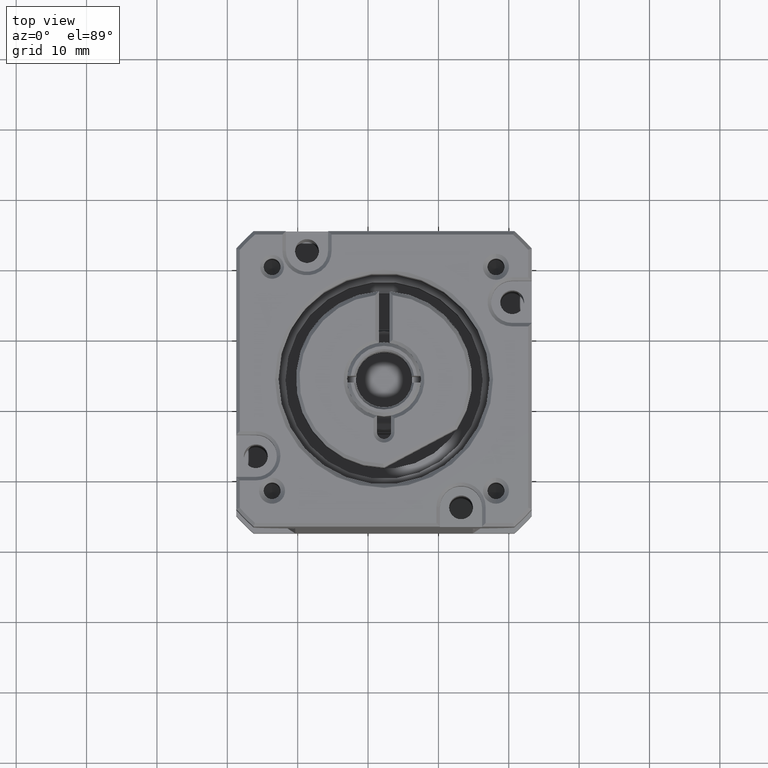
[diagram: clean part render]
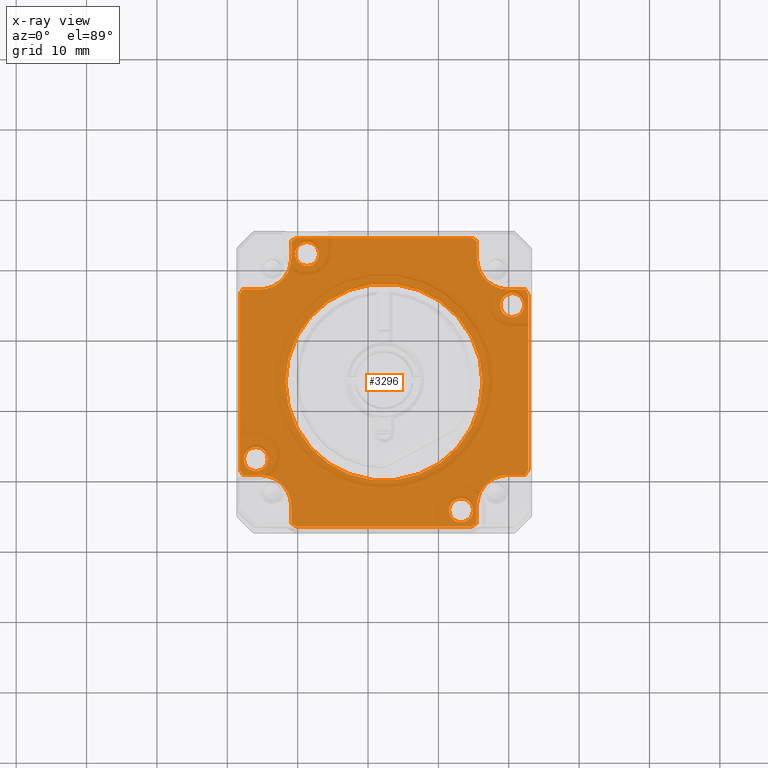
[diagram: x-ray — body ghosted, one internal face saturated and labeled with its STEP entity id]
A machine part, top view, then the same camera in x-ray: the body is ghosted and one INTERNAL B-rep face — a face not visible from any outside direction — is saturated and labeled: STEP entity #3296.
In plain terms, the highlighted planar face has unit normal (0, 0, -1).
Its self-contained STEP definition (entity closure, byte-faithful):
#12 = CARTESIAN_POINT ( 'NONE',  ( 20.50000000000000400, 0.0000000000000000000, 28.50000000000000000 ) ) ;
#102 = AXIS2_PLACEMENT_3D ( 'NONE', #9517, #10372, #3478 ) ;
#120 = VERTEX_POINT ( 'NONE', #9857 ) ;
#129 = EDGE_CURVE ( 'NONE', #869, #4469, #1448, .T. ) ;
#149 = DIRECTION ( 'NONE',  ( 1.000000000000000000, 0.0000000000000000000, -0.0000000000000000000 ) ) ;
#172 = ORIENTED_EDGE ( 'NONE', *, *, #6101, .T. ) ;
#185 = AXIS2_PLACEMENT_3D ( 'NONE', #9098, #2244, #4749 ) ;
#191 = CARTESIAN_POINT ( 'NONE',  ( 0.0000000000000000000, -13.18000000002450800, 28.50000000000000000 ) ) ;
#203 = CARTESIAN_POINT ( 'NONE',  ( -13.18000000002450800, 0.0000000000000000000, 28.50000000000000000 ) ) ;
#232 = VERTEX_POINT ( 'NONE', #361 ) ;
#262 = LINE ( 'NONE', #8527, #2153 ) ;
#285 = ORIENTED_EDGE ( 'NONE', *, *, #3294, .T. ) ;
#316 = CARTESIAN_POINT ( 'NONE',  ( 10.94455909183860100, 18.21480513991990000, 28.50000000000000000 ) ) ;
#322 = EDGE_CURVE ( 'NONE', #7762, #1803, #1992, .T. ) ;
#361 = CARTESIAN_POINT ( 'NONE',  ( -12.47998397434870900, 20.50000000000000400, 28.49999999999999600 ) ) ;
#390 = VERTEX_POINT ( 'NONE', #2612 ) ;
#408 = DIRECTION ( 'NONE',  ( 0.0000000000000000000, 0.0000000000000000000, 1.000000000000000000 ) ) ;
#461 = DIRECTION ( 'NONE',  ( -0.0000000000000000000, 0.0000000000000000000, -1.000000000000000000 ) ) ;
#493 = ORIENTED_EDGE ( 'NONE', *, *, #1289, .T. ) ;
#543 = CARTESIAN_POINT ( 'NONE',  ( 0.0000000000000000000, 0.0000000000000000000, 28.49999999999999600 ) ) ;
#550 = VERTEX_POINT ( 'NONE', #4516 ) ;
#568 = CIRCLE ( 'NONE', #8600, 1.700000000000000200 ) ;
#581 = VERTEX_POINT ( 'NONE', #7050 ) ;
#599 = VERTEX_POINT ( 'NONE', #9221 ) ;
#659 = CARTESIAN_POINT ( 'NONE',  ( -20.50000000000000400, 12.47998397434868800, 28.49999999999999600 ) ) ;
#693 = AXIS2_PLACEMENT_3D ( 'NONE', #316, #7250, #9919 ) ;
#748 = ORIENTED_EDGE ( 'NONE', *, *, #8700, .T. ) ;
#788 = VECTOR ( 'NONE', #9784, 1000.000000000000000 ) ;
#869 = VERTEX_POINT ( 'NONE', #7886 ) ;
#897 = FACE_BOUND ( 'NONE', #9032, .T. ) ;
#900 = CARTESIAN_POINT ( 'NONE',  ( -14.00000000000000000, 0.0000000000000000000, 28.50000000000000000 ) ) ;
#913 = DIRECTION ( 'NONE',  ( -1.000000000000000000, 0.0000000000000000000, 0.0000000000000000000 ) ) ;
#929 = DIRECTION ( 'NONE',  ( 7.080503983739728200E-017, 7.080503983739728200E-017, 1.000000000000000000 ) ) ;
#942 = VERTEX_POINT ( 'NONE', #6984 ) ;
#968 = CARTESIAN_POINT ( 'NONE',  ( 0.0000000000000000000, -13.18000000000000700, 28.50000000000000000 ) ) ;
#1036 = DIRECTION ( 'NONE',  ( 0.0000000000000000000, 1.000000000000000000, 0.0000000000000000000 ) ) ;
#1133 = CARTESIAN_POINT ( 'NONE',  ( 0.0000000000000000000, 13.18000000002450800, 28.50000000000000000 ) ) ;
#1199 = AXIS2_PLACEMENT_3D ( 'NONE', #6459, #408, #9086 ) ;
#1206 = PLANE ( 'NONE',  #1199 ) ;
#1245 = ORIENTED_EDGE ( 'NONE', *, *, #2486, .T. ) ;
#1283 = LINE ( 'NONE', #6067, #10257 ) ;
#1289 = EDGE_CURVE ( 'NONE', #599, #3255, #2241, .T. ) ;
#1316 = EDGE_CURVE ( 'NONE', #8825, #869, #1704, .T. ) ;
#1321 = AXIS2_PLACEMENT_3D ( 'NONE', #9305, #10178, #6616 ) ;
#1448 = LINE ( 'NONE', #2008, #8936 ) ;
#1480 = CIRCLE ( 'NONE', #9796, 4.499999999991647600 ) ;
#1492 = LINE ( 'NONE', #968, #2027 ) ;
#1509 = VERTEX_POINT ( 'NONE', #6431 ) ;
#1523 = CARTESIAN_POINT ( 'NONE',  ( 17.68000000000000000, -17.68000000000000000, 28.49999999989449900 ) ) ;
#1525 = ORIENTED_EDGE ( 'NONE', *, *, #129, .T. ) ;
#1534 = CARTESIAN_POINT ( 'NONE',  ( -12.64455909183860000, -18.21480513991990000, 28.50000000000000000 ) ) ;
#1541 = EDGE_CURVE ( 'NONE', #3255, #599, #4392, .T. ) ;
#1544 = ORIENTED_EDGE ( 'NONE', *, *, #3885, .T. ) ;
#1555 = CIRCLE ( 'NONE', #4358, 24.00000000000000400 ) ;
#1595 = EDGE_CURVE ( 'NONE', #1781, #2874, #1555, .T. ) ;
#1699 = CARTESIAN_POINT ( 'NONE',  ( 0.0000000000000000000, 20.50000000000000400, 28.50000000000000000 ) ) ;
#1704 = CIRCLE ( 'NONE', #10470, 24.00000000000001400 ) ;
#1731 = VERTEX_POINT ( 'NONE', #10205 ) ;
#1752 = CARTESIAN_POINT ( 'NONE',  ( 17.68000000000000000, 17.68000000000000000, 28.49999999989449900 ) ) ;
#1758 = VECTOR ( 'NONE', #2578, 1000.000000000000000 ) ;
#1781 = VERTEX_POINT ( 'NONE', #4495 ) ;
#1803 = VERTEX_POINT ( 'NONE', #8757 ) ;
#1882 = DIRECTION ( 'NONE',  ( 1.000000000000000000, 0.0000000000000000000, 0.0000000000000000000 ) ) ;
#1890 = DIRECTION ( 'NONE',  ( -0.0000000000000000000, 1.000000000000000000, 0.0000000000000000000 ) ) ;
#1898 = VERTEX_POINT ( 'NONE', #3599 ) ;
#1941 = CIRCLE ( 'NONE', #10836, 4.500000000022902600 ) ;
#1959 = DIRECTION ( 'NONE',  ( 7.080503983736879700E-017, 1.416100796747375900E-016, 1.000000000000000000 ) ) ;
#1992 = CIRCLE ( 'NONE', #4129, 1.700000000000000200 ) ;
#2002 = CARTESIAN_POINT ( 'NONE',  ( -13.18000000006204800, -17.68000000000000000, 28.49999999994420800 ) ) ;
#2008 = CARTESIAN_POINT ( 'NONE',  ( 13.18000000000000700, 0.0000000000000000000, 28.50000000000000000 ) ) ;
#2027 = VECTOR ( 'NONE', #6560, 1000.000000000000000 ) ;
#2133 = DIRECTION ( 'NONE',  ( -0.0000000000000000000, -0.0000000000000000000, 1.000000000000000000 ) ) ;
#2139 = CIRCLE ( 'NONE', #693, 1.700000000000000200 ) ;
#2153 = VECTOR ( 'NONE', #10197, 1000.000000000000000 ) ;
#2241 = CIRCLE ( 'NONE', #2493, 1.700000000000000200 ) ;
#2244 = DIRECTION ( 'NONE',  ( 7.080503983736882200E-017, 1.416100796747376200E-016, 1.000000000000000000 ) ) ;
#2277 = VERTEX_POINT ( 'NONE', #10312 ) ;
#2302 = LINE ( 'NONE', #12, #1758 ) ;
#2396 = EDGE_CURVE ( 'NONE', #3972, #6877, #3114, .T. ) ;
#2411 = CARTESIAN_POINT ( 'NONE',  ( -18.21480513991990000, 10.94455909183860100, 28.50000000000000000 ) ) ;
#2421 = VERTEX_POINT ( 'NONE', #7844 ) ;
#2454 = ORIENTED_EDGE ( 'NONE', *, *, #2887, .T. ) ;
#2486 = EDGE_CURVE ( 'NONE', #1898, #390, #5133, .T. ) ;
#2489 = EDGE_CURVE ( 'NONE', #5694, #1898, #6320, .T. ) ;
#2493 = AXIS2_PLACEMENT_3D ( 'NONE', #2411, #9280, #4065 ) ;
#2514 = CIRCLE ( 'NONE', #9174, 24.00000000000001400 ) ;
#2578 = DIRECTION ( 'NONE',  ( -0.0000000000000000000, 1.000000000000000000, 0.0000000000000000000 ) ) ;
#2583 = VECTOR ( 'NONE', #5490, 1000.000000000000000 ) ;
#2612 = CARTESIAN_POINT ( 'NONE',  ( -12.47998397434869000, -20.50000000000000400, 28.49999999999999300 ) ) ;
#2618 = EDGE_LOOP ( 'NONE', ( #8053, #8843 ) ) ;
#2658 = ORIENTED_EDGE ( 'NONE', *, *, #4335, .T. ) ;
#2662 = EDGE_CURVE ( 'NONE', #942, #9889, #2139, .T. ) ;
#2700 = VERTEX_POINT ( 'NONE', #6617 ) ;
#2719 = DIRECTION ( 'NONE',  ( 0.0000000000000000000, 0.0000000000000000000, -1.000000000000000000 ) ) ;
#2848 = DIRECTION ( 'NONE',  ( -0.0000000000000000000, 0.0000000000000000000, -1.000000000000000000 ) ) ;
#2874 = VERTEX_POINT ( 'NONE', #659 ) ;
#2887 = EDGE_CURVE ( 'NONE', #4469, #8872, #4836, .T. ) ;
#2952 = DIRECTION ( 'NONE',  ( 0.0000000000000000000, 0.0000000000000000000, -1.000000000000000000 ) ) ;
#2990 = DIRECTION ( 'NONE',  ( 1.000000000000000000, 0.0000000000000000000, 0.0000000000000000000 ) ) ;
#3114 = CIRCLE ( 'NONE', #102, 24.00000000000001100 ) ;
#3160 = CARTESIAN_POINT ( 'NONE',  ( 0.0000000000000000000, -20.50000000000000400, 28.50000000000000000 ) ) ;
#3207 = VECTOR ( 'NONE', #149, 1000.000000000000000 ) ;
#3236 = FACE_BOUND ( 'NONE', #7709, .T. ) ;
#3255 = VERTEX_POINT ( 'NONE', #3798 ) ;
#3294 = EDGE_CURVE ( 'NONE', #550, #5553, #6985, .T. ) ;
#3296 = ADVANCED_FACE ( 'NONE', ( #8232, #9997, #3236, #897, #9864, #7961 ), #1206, .T. ) ;
#3397 = DIRECTION ( 'NONE',  ( -1.000000000000000000, 0.0000000000000000000, 0.0000000000000000000 ) ) ;
#3409 = VERTEX_POINT ( 'NONE', #6682 ) ;
#3412 = CARTESIAN_POINT ( 'NONE',  ( 12.47998397434870600, -20.50000000000000400, 28.49999999999999600 ) ) ;
#3478 = DIRECTION ( 'NONE',  ( 0.0000000000000000000, 1.000000000000000000, 0.0000000000000000000 ) ) ;
#3516 = CIRCLE ( 'NONE', #9367, 1.700000000000000200 ) ;
#3552 = CARTESIAN_POINT ( 'NONE',  ( 3.540251994349909700E-017, 7.080503988699819400E-017, 28.50000000000000000 ) ) ;
#3571 = DIRECTION ( 'NONE',  ( -0.0000000000000000000, -3.854941057733391600E-016, -1.000000000000000000 ) ) ;
#3599 = CARTESIAN_POINT ( 'NONE',  ( -13.18000000001234700, -20.05710846557087700, 28.49999999999999300 ) ) ;
#3625 = CARTESIAN_POINT ( 'NONE',  ( 3.540251994281549300E-017, 3.540251994281549300E-017, 28.49999999999999300 ) ) ;
#3684 = AXIS2_PLACEMENT_3D ( 'NONE', #543, #2133, #3874 ) ;
#3798 = CARTESIAN_POINT ( 'NONE',  ( -19.91480513991989900, 10.94455909183860100, 28.50000000000000000 ) ) ;
#3822 = DIRECTION ( 'NONE',  ( 0.0000000000000000000, 0.0000000000000000000, -1.000000000000000000 ) ) ;
#3874 = DIRECTION ( 'NONE',  ( -1.000000000000000000, -5.329070518200751400E-014, 0.0000000000000000000 ) ) ;
#3885 = EDGE_CURVE ( 'NONE', #4983, #10688, #9718, .T. ) ;
#3897 = VERTEX_POINT ( 'NONE', #1534 ) ;
#3928 = CARTESIAN_POINT ( 'NONE',  ( 0.0000000000000000000, 0.0000000000000000000, 28.50000000000000000 ) ) ;
#3972 = VERTEX_POINT ( 'NONE', #8476 ) ;
#4039 = ORIENTED_EDGE ( 'NONE', *, *, #6440, .T. ) ;
#4065 = DIRECTION ( 'NONE',  ( -1.000000000000000000, 0.0000000000000000000, 0.0000000000000000000 ) ) ;
#4088 = EDGE_LOOP ( 'NONE', ( #4459, #493 ) ) ;
#4093 = ORIENTED_EDGE ( 'NONE', *, *, #4568, .T. ) ;
#4129 = AXIS2_PLACEMENT_3D ( 'NONE', #10113, #8474, #10153 ) ;
#4207 = CARTESIAN_POINT ( 'NONE',  ( 2.506676834942689700E-033, 3.540251994349898000E-017, 28.49999999999999600 ) ) ;
#4223 = VERTEX_POINT ( 'NONE', #8543 ) ;
#4268 = CARTESIAN_POINT ( 'NONE',  ( 0.0000000000000000000, 0.0000000000000000000, 28.50000000000000000 ) ) ;
#4295 = ORIENTED_EDGE ( 'NONE', *, *, #2396, .T. ) ;
#4320 = AXIS2_PLACEMENT_3D ( 'NONE', #7385, #4846, #10838 ) ;
#4335 = EDGE_CURVE ( 'NONE', #2700, #1509, #4726, .T. ) ;
#4358 = AXIS2_PLACEMENT_3D ( 'NONE', #9782, #9847, #9239 ) ;
#4376 = AXIS2_PLACEMENT_3D ( 'NONE', #1523, #7596, #5019 ) ;
#4387 = CARTESIAN_POINT ( 'NONE',  ( 13.18000000001906000, -17.68000000000000000, 28.49999999993508500 ) ) ;
#4389 = EDGE_CURVE ( 'NONE', #1731, #550, #1480, .T. ) ;
#4392 = CIRCLE ( 'NONE', #5532, 1.700000000000000200 ) ;
#4445 = EDGE_CURVE ( 'NONE', #9889, #942, #3516, .T. ) ;
#4446 = LINE ( 'NONE', #3160, #7867 ) ;
#4459 = ORIENTED_EDGE ( 'NONE', *, *, #1541, .T. ) ;
#4469 = VERTEX_POINT ( 'NONE', #4387 ) ;
#4495 = CARTESIAN_POINT ( 'NONE',  ( -20.05710846557087400, 13.18000000001234900, 28.49999999999999600 ) ) ;
#4501 = CARTESIAN_POINT ( 'NONE',  ( 12.64455909183860000, 18.21480513991990000, 28.50000000000000000 ) ) ;
#4509 = CARTESIAN_POINT ( 'NONE',  ( 19.91480513991989900, -10.94455909183860100, 28.50000000000000000 ) ) ;
#4516 = CARTESIAN_POINT ( 'NONE',  ( 13.18000000003939600, 17.68000000000000000, 28.49999999992087400 ) ) ;
#4568 = EDGE_CURVE ( 'NONE', #581, #1781, #6340, .T. ) ;
#4624 = EDGE_CURVE ( 'NONE', #1803, #7762, #6736, .T. ) ;
#4726 = LINE ( 'NONE', #5776, #6603 ) ;
#4749 = DIRECTION ( 'NONE',  ( 0.0000000000000000000, 1.000000000000000000, -1.445602896647338900E-016 ) ) ;
#4799 = ORIENTED_EDGE ( 'NONE', *, *, #5105, .T. ) ;
#4817 = CIRCLE ( 'NONE', #185, 24.00000000000000700 ) ;
#4836 = CIRCLE ( 'NONE', #4376, 4.499999999991649300 ) ;
#4846 = DIRECTION ( 'NONE',  ( 0.0000000000000000000, 0.0000000000000000000, -1.000000000000000000 ) ) ;
#4852 = CARTESIAN_POINT ( 'NONE',  ( 14.00000000000000000, 1.714505518806294600E-015, 28.50000000000000000 ) ) ;
#4880 = ORIENTED_EDGE ( 'NONE', *, *, #4445, .T. ) ;
#4973 = EDGE_CURVE ( 'NONE', #6604, #232, #7178, .T. ) ;
#4983 = VERTEX_POINT ( 'NONE', #900 ) ;
#5019 = DIRECTION ( 'NONE',  ( 0.0000000000000000000, -1.000000000000000000, 0.0000000000000000000 ) ) ;
#5105 = EDGE_CURVE ( 'NONE', #6877, #2277, #1492, .T. ) ;
#5133 = CIRCLE ( 'NONE', #6119, 24.00000000000000700 ) ;
#5188 = ORIENTED_EDGE ( 'NONE', *, *, #6115, .T. ) ;
#5230 = DIRECTION ( 'NONE',  ( -1.000000000000000000, 0.0000000000000000000, 0.0000000000000000000 ) ) ;
#5238 = EDGE_CURVE ( 'NONE', #390, #8825, #4446, .T. ) ;
#5284 = VECTOR ( 'NONE', #9520, 1000.000000000000000 ) ;
#5288 = ORIENTED_EDGE ( 'NONE', *, *, #5238, .T. ) ;
#5293 = DIRECTION ( 'NONE',  ( 1.776356839400250500E-015, 1.000000000000000000, -1.445602896647338400E-016 ) ) ;
#5346 = EDGE_CURVE ( 'NONE', #2874, #3972, #262, .T. ) ;
#5359 = DIRECTION ( 'NONE',  ( 5.013353666371384700E-033, 7.080503983736880900E-017, 1.000000000000000000 ) ) ;
#5465 = CARTESIAN_POINT ( 'NONE',  ( 17.68000000000000000, -13.18000000006204800, 28.49999999994420800 ) ) ;
#5490 = DIRECTION ( 'NONE',  ( -1.000000000000000000, -0.0000000000000000000, 0.0000000000000000000 ) ) ;
#5532 = AXIS2_PLACEMENT_3D ( 'NONE', #10634, #2952, #6285 ) ;
#5553 = VERTEX_POINT ( 'NONE', #10454 ) ;
#5591 = EDGE_CURVE ( 'NONE', #232, #2700, #6837, .T. ) ;
#5645 = CARTESIAN_POINT ( 'NONE',  ( -17.68000000000000000, 17.68000000000000000, 28.49999999989449900 ) ) ;
#5694 = VERTEX_POINT ( 'NONE', #2002 ) ;
#5748 = LINE ( 'NONE', #191, #3207 ) ;
#5776 = CARTESIAN_POINT ( 'NONE',  ( -13.18000000000000700, 0.0000000000000000000, 28.50000000000000000 ) ) ;
#5902 = VECTOR ( 'NONE', #8272, 1000.000000000000000 ) ;
#5903 = ORIENTED_EDGE ( 'NONE', *, *, #11034, .T. ) ;
#5989 = DIRECTION ( 'NONE',  ( -1.000000000000000000, -0.0000000000000000000, 0.0000000000000000000 ) ) ;
#6065 = EDGE_LOOP ( 'NONE', ( #172, #8418, #285, #6922, #10971, #10328, #2658, #8833, #4093, #6761, #8303, #4295, #4799, #4039, #8116, #1245, #5288, #6996, #1525, #2454, #5188, #5903, #748, #10912 ) ) ;
#6067 = CARTESIAN_POINT ( 'NONE',  ( 0.0000000000000000000, 13.18000000000000700, 28.50000000000000000 ) ) ;
#6101 = EDGE_CURVE ( 'NONE', #120, #1731, #1283, .T. ) ;
#6115 = EDGE_CURVE ( 'NONE', #8872, #4223, #5748, .T. ) ;
#6119 = AXIS2_PLACEMENT_3D ( 'NONE', #3625, #929, #9630 ) ;
#6285 = DIRECTION ( 'NONE',  ( -1.000000000000000000, 0.0000000000000000000, 0.0000000000000000000 ) ) ;
#6320 = LINE ( 'NONE', #203, #788 ) ;
#6340 = LINE ( 'NONE', #1133, #2583 ) ;
#6384 = CARTESIAN_POINT ( 'NONE',  ( 13.18000000002450800, 0.0000000000000000000, 28.50000000000000000 ) ) ;
#6431 = CARTESIAN_POINT ( 'NONE',  ( -13.17999999998006900, 17.68000000000000000, 28.49999999994929600 ) ) ;
#6440 = EDGE_CURVE ( 'NONE', #2277, #5694, #7104, .T. ) ;
#6459 = CARTESIAN_POINT ( 'NONE',  ( 0.0000000000000000000, 0.0000000000000000000, 28.50000000000000000 ) ) ;
#6503 = EDGE_CURVE ( 'NONE', #3409, #120, #2514, .T. ) ;
#6560 = DIRECTION ( 'NONE',  ( 1.000000000000000000, 0.0000000000000000000, -0.0000000000000000000 ) ) ;
#6603 = VECTOR ( 'NONE', #6670, 1000.000000000000000 ) ;
#6604 = VERTEX_POINT ( 'NONE', #9996 ) ;
#6616 = DIRECTION ( 'NONE',  ( -1.000000000000000000, 0.0000000000000000000, 0.0000000000000000000 ) ) ;
#6617 = CARTESIAN_POINT ( 'NONE',  ( -13.18000000000308000, 20.05710846558065100, 28.49999999999692300 ) ) ;
#6670 = DIRECTION ( 'NONE',  ( 0.0000000000000000000, -1.000000000000000000, -0.0000000000000000000 ) ) ;
#6682 = CARTESIAN_POINT ( 'NONE',  ( 20.50000000000000400, 12.47998397434870600, 28.49999999999999600 ) ) ;
#6736 = CIRCLE ( 'NONE', #4320, 1.700000000000000200 ) ;
#6761 = ORIENTED_EDGE ( 'NONE', *, *, #1595, .T. ) ;
#6775 = AXIS2_PLACEMENT_3D ( 'NONE', #4268, #11103, #3397 ) ;
#6837 = CIRCLE ( 'NONE', #8186, 24.00000000000001400 ) ;
#6877 = VERTEX_POINT ( 'NONE', #10044 ) ;
#6922 = ORIENTED_EDGE ( 'NONE', *, *, #11051, .T. ) ;
#6984 = CARTESIAN_POINT ( 'NONE',  ( 9.244559091838599600, 18.21480513991990000, 28.50000000000000000 ) ) ;
#6985 = LINE ( 'NONE', #6384, #5902 ) ;
#6996 = ORIENTED_EDGE ( 'NONE', *, *, #1316, .T. ) ;
#7037 = VERTEX_POINT ( 'NONE', #8477 ) ;
#7040 = DIRECTION ( 'NONE',  ( 0.0000000000000000000, -1.000000000000000000, 0.0000000000000000000 ) ) ;
#7050 = CARTESIAN_POINT ( 'NONE',  ( -17.68000000000000000, 13.18000000006204800, 28.49999999994420800 ) ) ;
#7060 = CARTESIAN_POINT ( 'NONE',  ( 3.540251994349852400E-017, 3.540251994349852400E-017, 28.49999999999999600 ) ) ;
#7104 = CIRCLE ( 'NONE', #7414, 4.500000000022902600 ) ;
#7165 = ORIENTED_EDGE ( 'NONE', *, *, #10800, .T. ) ;
#7178 = LINE ( 'NONE', #1699, #5284 ) ;
#7250 = DIRECTION ( 'NONE',  ( 0.0000000000000000000, 0.0000000000000000000, -1.000000000000000000 ) ) ;
#7318 = ORIENTED_EDGE ( 'NONE', *, *, #7493, .T. ) ;
#7380 = DIRECTION ( 'NONE',  ( 1.000000000000000000, 0.0000000000000000000, -0.0000000000000000000 ) ) ;
#7385 = CARTESIAN_POINT ( 'NONE',  ( 18.21480513991990000, -10.94455909183860100, 28.50000000000000000 ) ) ;
#7414 = AXIS2_PLACEMENT_3D ( 'NONE', #8952, #2848, #1882 ) ;
#7468 = EDGE_CURVE ( 'NONE', #1509, #581, #1941, .T. ) ;
#7493 = EDGE_CURVE ( 'NONE', #2421, #3897, #9272, .T. ) ;
#7543 = CIRCLE ( 'NONE', #6775, 14.00000000000000000 ) ;
#7596 = DIRECTION ( 'NONE',  ( -0.0000000000000000000, -3.854941057733391600E-016, -1.000000000000000000 ) ) ;
#7709 = EDGE_LOOP ( 'NONE', ( #10611, #7318 ) ) ;
#7762 = VERTEX_POINT ( 'NONE', #4509 ) ;
#7844 = CARTESIAN_POINT ( 'NONE',  ( -9.244559091838599600, -18.21480513991990000, 28.50000000000000000 ) ) ;
#7867 = VECTOR ( 'NONE', #7380, 1000.000000000000000 ) ;
#7886 = CARTESIAN_POINT ( 'NONE',  ( 13.18000000000734100, -20.05710846558294900, 28.49999999999266000 ) ) ;
#7952 = DIRECTION ( 'NONE',  ( 7.080503983736882200E-017, 7.080503983736882200E-017, 1.000000000000000000 ) ) ;
#7961 = FACE_BOUND ( 'NONE', #9381, .T. ) ;
#8053 = ORIENTED_EDGE ( 'NONE', *, *, #4624, .T. ) ;
#8116 = ORIENTED_EDGE ( 'NONE', *, *, #2489, .T. ) ;
#8132 = ORIENTED_EDGE ( 'NONE', *, *, #2662, .T. ) ;
#8186 = AXIS2_PLACEMENT_3D ( 'NONE', #3552, #1959, #5293 ) ;
#8193 = EDGE_CURVE ( 'NONE', #3897, #2421, #568, .T. ) ;
#8232 = FACE_OUTER_BOUND ( 'NONE', #6065, .T. ) ;
#8272 = DIRECTION ( 'NONE',  ( -0.0000000000000000000, 1.000000000000000000, 0.0000000000000000000 ) ) ;
#8303 = ORIENTED_EDGE ( 'NONE', *, *, #5346, .T. ) ;
#8418 = ORIENTED_EDGE ( 'NONE', *, *, #4389, .T. ) ;
#8474 = DIRECTION ( 'NONE',  ( 0.0000000000000000000, 0.0000000000000000000, -1.000000000000000000 ) ) ;
#8476 = CARTESIAN_POINT ( 'NONE',  ( -20.50000000000000000, -12.47998397434870200, 28.50000000000000400 ) ) ;
#8477 = CARTESIAN_POINT ( 'NONE',  ( 20.50000000000000400, -12.47998397434868800, 28.49999999999999600 ) ) ;
#8527 = CARTESIAN_POINT ( 'NONE',  ( -20.50000000000000400, 0.0000000000000000000, 28.50000000000000000 ) ) ;
#8543 = CARTESIAN_POINT ( 'NONE',  ( 20.05710846557087700, -13.18000000001234400, 28.50000000000000000 ) ) ;
#8600 = AXIS2_PLACEMENT_3D ( 'NONE', #9494, #8722, #5230 ) ;
#8700 = EDGE_CURVE ( 'NONE', #7037, #3409, #2302, .T. ) ;
#8722 = DIRECTION ( 'NONE',  ( 0.0000000000000000000, 0.0000000000000000000, -1.000000000000000000 ) ) ;
#8757 = CARTESIAN_POINT ( 'NONE',  ( 16.51480513991990100, -10.94455909183860100, 28.50000000000000000 ) ) ;
#8825 = VERTEX_POINT ( 'NONE', #3412 ) ;
#8833 = ORIENTED_EDGE ( 'NONE', *, *, #7468, .T. ) ;
#8843 = ORIENTED_EDGE ( 'NONE', *, *, #322, .T. ) ;
#8872 = VERTEX_POINT ( 'NONE', #5465 ) ;
#8936 = VECTOR ( 'NONE', #1890, 1000.000000000000000 ) ;
#8952 = CARTESIAN_POINT ( 'NONE',  ( -17.68000000000000000, -17.68000000000000000, 28.49999999989449900 ) ) ;
#9032 = EDGE_LOOP ( 'NONE', ( #8132, #4880 ) ) ;
#9086 = DIRECTION ( 'NONE',  ( 1.000000000000000000, 0.0000000000000000000, -0.0000000000000000000 ) ) ;
#9098 = CARTESIAN_POINT ( 'NONE',  ( 3.540251994349894300E-017, 7.080503988699787300E-017, 28.49999999999999600 ) ) ;
#9174 = AXIS2_PLACEMENT_3D ( 'NONE', #7060, #7952, #10599 ) ;
#9221 = CARTESIAN_POINT ( 'NONE',  ( -16.51480513991990100, 10.94455909183860100, 28.50000000000000000 ) ) ;
#9239 = DIRECTION ( 'NONE',  ( -1.000000000000000000, 5.506706202140776400E-014, 0.0000000000000000000 ) ) ;
#9272 = CIRCLE ( 'NONE', #1321, 1.700000000000000200 ) ;
#9280 = DIRECTION ( 'NONE',  ( 0.0000000000000000000, 0.0000000000000000000, -1.000000000000000000 ) ) ;
#9305 = CARTESIAN_POINT ( 'NONE',  ( -10.94455909183860100, -18.21480513991990000, 28.50000000000000000 ) ) ;
#9367 = AXIS2_PLACEMENT_3D ( 'NONE', #10439, #2719, #913 ) ;
#9381 = EDGE_LOOP ( 'NONE', ( #1544, #7165 ) ) ;
#9494 = CARTESIAN_POINT ( 'NONE',  ( -10.94455909183860100, -18.21480513991990000, 28.50000000000000000 ) ) ;
#9517 = CARTESIAN_POINT ( 'NONE',  ( 2.506676834942709600E-033, 3.540251994349925700E-017, 28.50000000000000000 ) ) ;
#9520 = DIRECTION ( 'NONE',  ( -1.000000000000000000, -0.0000000000000000000, 0.0000000000000000000 ) ) ;
#9630 = DIRECTION ( 'NONE',  ( -1.000000000000000000, -9.769962616701377600E-015, 0.0000000000000000000 ) ) ;
#9718 = CIRCLE ( 'NONE', #11145, 14.00000000000000000 ) ;
#9782 = CARTESIAN_POINT ( 'NONE',  ( 3.540251994281562300E-017, 3.540251994281562300E-017, 28.49999999999999600 ) ) ;
#9784 = DIRECTION ( 'NONE',  ( 0.0000000000000000000, -1.000000000000000000, -0.0000000000000000000 ) ) ;
#9796 = AXIS2_PLACEMENT_3D ( 'NONE', #1752, #3571, #7040 ) ;
#9847 = DIRECTION ( 'NONE',  ( 7.080503983739728200E-017, 7.080503983739728200E-017, 1.000000000000000000 ) ) ;
#9857 = CARTESIAN_POINT ( 'NONE',  ( 20.05710846558294900, 13.18000000000734500, 28.49999999999266000 ) ) ;
#9864 = FACE_BOUND ( 'NONE', #2618, .T. ) ;
#9889 = VERTEX_POINT ( 'NONE', #4501 ) ;
#9919 = DIRECTION ( 'NONE',  ( -1.000000000000000000, 0.0000000000000000000, 0.0000000000000000000 ) ) ;
#9996 = CARTESIAN_POINT ( 'NONE',  ( 12.47998397434869500, 20.50000000000000400, 28.49999999999999600 ) ) ;
#9997 = FACE_BOUND ( 'NONE', #4088, .T. ) ;
#10044 = CARTESIAN_POINT ( 'NONE',  ( -20.05710846558064700, -13.18000000000307800, 28.49999999999692300 ) ) ;
#10113 = CARTESIAN_POINT ( 'NONE',  ( 18.21480513991990000, -10.94455909183860100, 28.50000000000000000 ) ) ;
#10153 = DIRECTION ( 'NONE',  ( -1.000000000000000000, 0.0000000000000000000, 0.0000000000000000000 ) ) ;
#10178 = DIRECTION ( 'NONE',  ( 0.0000000000000000000, 0.0000000000000000000, -1.000000000000000000 ) ) ;
#10190 = DIRECTION ( 'NONE',  ( -1.000000000000000000, 0.0000000000000000000, 0.0000000000000000000 ) ) ;
#10197 = DIRECTION ( 'NONE',  ( 0.0000000000000000000, -1.000000000000000000, -0.0000000000000000000 ) ) ;
#10205 = CARTESIAN_POINT ( 'NONE',  ( 17.68000000000000000, 13.18000000001906200, 28.49999999993508500 ) ) ;
#10257 = VECTOR ( 'NONE', #5989, 1000.000000000000000 ) ;
#10312 = CARTESIAN_POINT ( 'NONE',  ( -17.68000000000000000, -13.17999999998006900, 28.49999999994929600 ) ) ;
#10328 = ORIENTED_EDGE ( 'NONE', *, *, #5591, .T. ) ;
#10372 = DIRECTION ( 'NONE',  ( 5.013353666371384700E-033, 7.080503983736880900E-017, 1.000000000000000000 ) ) ;
#10382 = CIRCLE ( 'NONE', #3684, 24.00000000000001100 ) ;
#10439 = CARTESIAN_POINT ( 'NONE',  ( 10.94455909183860100, 18.21480513991990000, 28.50000000000000000 ) ) ;
#10454 = CARTESIAN_POINT ( 'NONE',  ( 13.18000000001234900, 20.05710846557088400, 28.49999999999999600 ) ) ;
#10470 = AXIS2_PLACEMENT_3D ( 'NONE', #4207, #5359, #1036 ) ;
#10599 = DIRECTION ( 'NONE',  ( -1.000000000000000000, 0.0000000000000000000, 0.0000000000000000000 ) ) ;
#10611 = ORIENTED_EDGE ( 'NONE', *, *, #8193, .T. ) ;
#10634 = CARTESIAN_POINT ( 'NONE',  ( -18.21480513991990000, 10.94455909183860100, 28.50000000000000000 ) ) ;
#10688 = VERTEX_POINT ( 'NONE', #4852 ) ;
#10800 = EDGE_CURVE ( 'NONE', #10688, #4983, #7543, .T. ) ;
#10836 = AXIS2_PLACEMENT_3D ( 'NONE', #5645, #461, #2990 ) ;
#10838 = DIRECTION ( 'NONE',  ( -1.000000000000000000, 0.0000000000000000000, 0.0000000000000000000 ) ) ;
#10912 = ORIENTED_EDGE ( 'NONE', *, *, #6503, .T. ) ;
#10971 = ORIENTED_EDGE ( 'NONE', *, *, #4973, .T. ) ;
#11034 = EDGE_CURVE ( 'NONE', #4223, #7037, #4817, .T. ) ;
#11051 = EDGE_CURVE ( 'NONE', #5553, #6604, #10382, .T. ) ;
#11103 = DIRECTION ( 'NONE',  ( 0.0000000000000000000, 0.0000000000000000000, -1.000000000000000000 ) ) ;
#11145 = AXIS2_PLACEMENT_3D ( 'NONE', #3928, #3822, #10190 ) ;